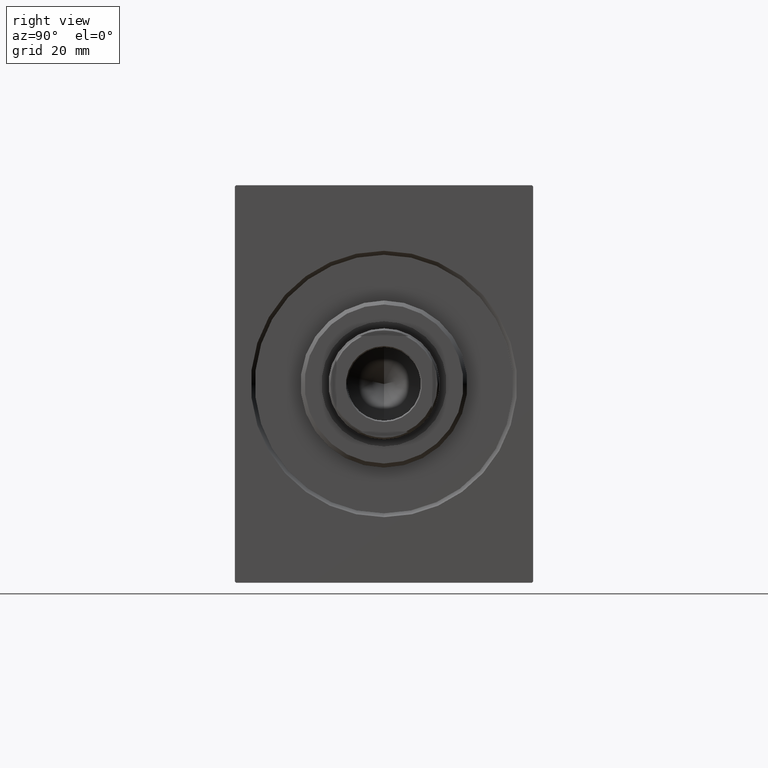
[diagram: clean part render]
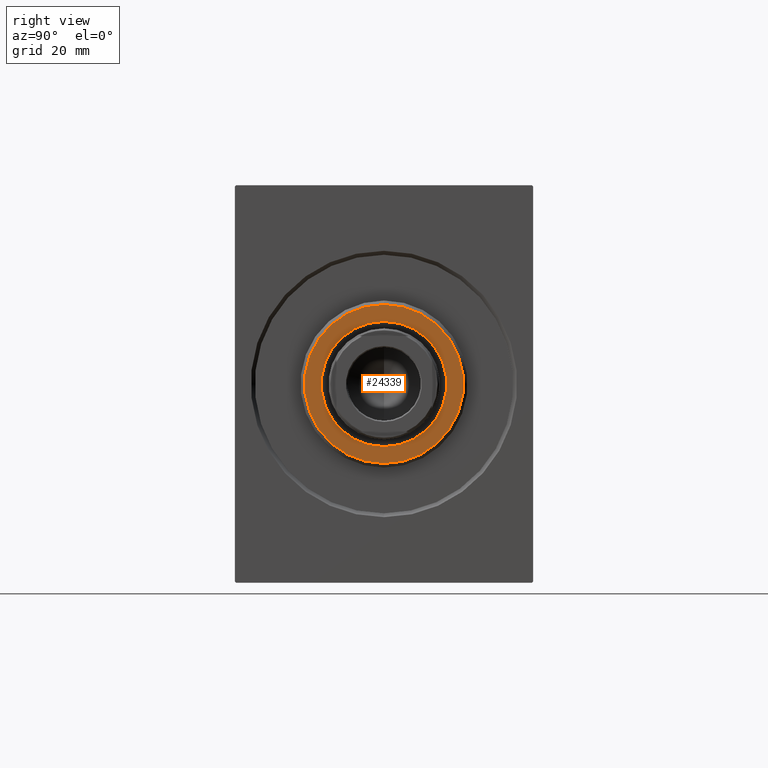
[diagram: same view with one face highlighted and labeled with its STEP entity id]
A machine part, right view. The second image highlights one B-rep face of the part: STEP entity #24339.
In plain terms, the highlighted planar face has unit normal (1, 0, 0).
Its self-contained STEP definition (entity closure, byte-faithful):
#64 = DIRECTION ( 'NONE',  ( 1.000000000000000000, -0.000000000000000000, 0.000000000000000000 ) ) ;
#176 = DIRECTION ( 'NONE',  ( 1.000000000000000000, -0.000000000000000000, 0.000000000000000000 ) ) ;
#830 = DIRECTION ( 'NONE',  ( 0.000000000000000000, 0.000000000000000000, -1.000000000000000000 ) ) ;
#913 = EDGE_LOOP ( 'NONE', ( #2093, #3046 ) ) ;
#1970 = AXIS2_PLACEMENT_3D ( 'NONE', #31999, #22395, #12320 ) ;
#2093 = ORIENTED_EDGE ( 'NONE', *, *, #21544, .T. ) ;
#3046 = ORIENTED_EDGE ( 'NONE', *, *, #24393, .T. ) ;
#4506 = VERTEX_POINT ( 'NONE', #38804 ) ;
#5115 = FACE_BOUND ( 'NONE', #8534, .T. ) ;
#8467 = CARTESIAN_POINT ( 'NONE',  ( 3.000000000000000000, 2.510525938252075270E-15, -20.00000000000001776 ) ) ;
#8534 = EDGE_LOOP ( 'NONE', ( #37051, #9840 ) ) ;
#9541 = CARTESIAN_POINT ( 'NONE',  ( 3.000000000000000000, 0.000000000000000000, 0.000000000000000000 ) ) ;
#9832 = VERTEX_POINT ( 'NONE', #40490 ) ;
#9840 = ORIENTED_EDGE ( 'NONE', *, *, #35994, .T. ) ;
#11966 = DIRECTION ( 'NONE',  ( -1.000000000000000000, 0.000000000000000000, -0.000000000000000000 ) ) ;
#12040 = DIRECTION ( 'NONE',  ( 0.000000000000000000, 0.000000000000000000, -1.000000000000000000 ) ) ;
#12320 = DIRECTION ( 'NONE',  ( 0.000000000000000000, 0.000000000000000000, -1.000000000000000000 ) ) ;
#13404 = DIRECTION ( 'NONE',  ( 0.000000000000000000, 0.000000000000000000, -1.000000000000000000 ) ) ;
#15316 = CARTESIAN_POINT ( 'NONE',  ( 3.000000000000000000, 0.000000000000000000, 0.000000000000000000 ) ) ;
#15862 = VERTEX_POINT ( 'NONE', #38976 ) ;
#16623 = CIRCLE ( 'NONE', #35466, 20.00000000000001776 ) ;
#18460 = PLANE ( 'NONE',  #1970 ) ;
#20035 = EDGE_CURVE ( 'NONE', #9832, #15862, #34669, .T. ) ;
#21544 = EDGE_CURVE ( 'NONE', #4506, #22479, #29104, .T. ) ;
#22395 = DIRECTION ( 'NONE',  ( 1.000000000000000000, -0.000000000000000000, 0.000000000000000000 ) ) ;
#22479 = VERTEX_POINT ( 'NONE', #8467 ) ;
#24339 = ADVANCED_FACE ( 'NONE', ( #35725, #5115 ), #18460, .T. ) ;
#24393 = EDGE_CURVE ( 'NONE', #22479, #4506, #16623, .T. ) ;
#25868 = CIRCLE ( 'NONE', #32115, 15.75000000000000000 ) ;
#29104 = CIRCLE ( 'NONE', #40275, 20.00000000000001776 ) ;
#31999 = CARTESIAN_POINT ( 'NONE',  ( 3.000000000000000000, 0.000000000000000000, 0.000000000000000000 ) ) ;
#32115 = AXIS2_PLACEMENT_3D ( 'NONE', #9541, #11966, #35144 ) ;
#34669 = CIRCLE ( 'NONE', #38847, 15.75000000000000000 ) ;
#35144 = DIRECTION ( 'NONE',  ( 0.000000000000000000, 0.000000000000000000, -1.000000000000000000 ) ) ;
#35466 = AXIS2_PLACEMENT_3D ( 'NONE', #36144, #64, #13404 ) ;
#35725 = FACE_OUTER_BOUND ( 'NONE', #913, .T. ) ;
#35994 = EDGE_CURVE ( 'NONE', #15862, #9832, #25868, .T. ) ;
#36144 = CARTESIAN_POINT ( 'NONE',  ( 3.000000000000000000, 0.000000000000000000, 0.000000000000000000 ) ) ;
#37051 = ORIENTED_EDGE ( 'NONE', *, *, #20035, .T. ) ;
#38804 = CARTESIAN_POINT ( 'NONE',  ( 3.000000000000000000, 0.000000000000000000, 20.00000000000001776 ) ) ;
#38847 = AXIS2_PLACEMENT_3D ( 'NONE', #15316, #41998, #12040 ) ;
#38976 = CARTESIAN_POINT ( 'NONE',  ( 3.000000000000000000, 1.928818708657080950E-15, -15.75000000000000000 ) ) ;
#40275 = AXIS2_PLACEMENT_3D ( 'NONE', #40843, #176, #830 ) ;
#40490 = CARTESIAN_POINT ( 'NONE',  ( 3.000000000000000000, 0.000000000000000000, 15.75000000000000000 ) ) ;
#40843 = CARTESIAN_POINT ( 'NONE',  ( 3.000000000000000000, 0.000000000000000000, 0.000000000000000000 ) ) ;
#41998 = DIRECTION ( 'NONE',  ( -1.000000000000000000, 0.000000000000000000, -0.000000000000000000 ) ) ;